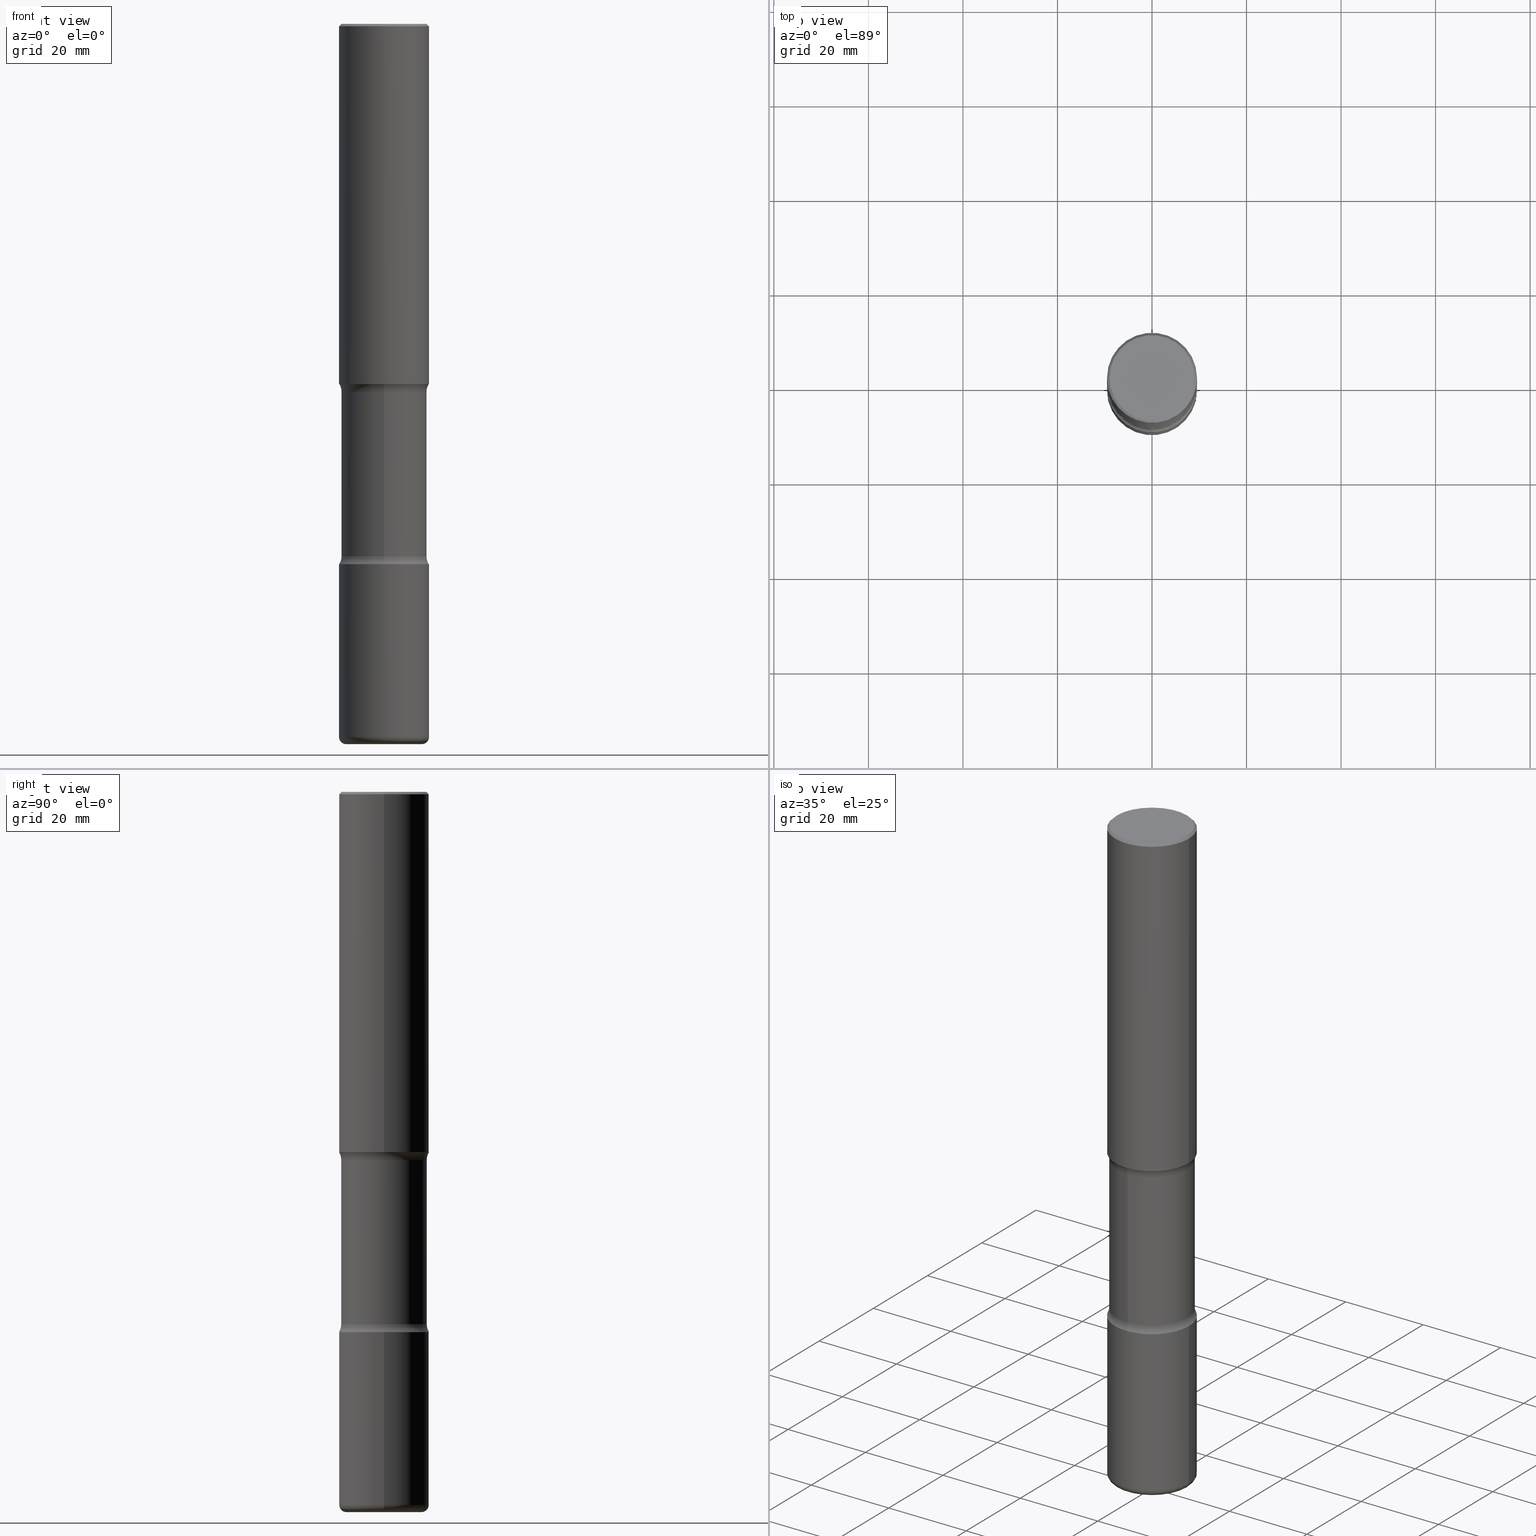
[diagram: canonical four-view strip — front | top / right | iso, engineering-drawing reading convention]
A machine part, canonical four-view strip (front | top / right | iso — engineering-drawing reading convention). The complete STEP part file that produces these views, byte-faithful:
ISO-10303-21;
HEADER;
FILE_DESCRIPTION (( 'STEP AP203' ),
    '1' );
FILE_NAME ('37935.STEP',
    '2024-03-02T01:33:41',
    ( '' ),
    ( '' ),
    'SwSTEP 2.0',
    'SolidWorks 2023',
    '' );
FILE_SCHEMA (( 'CONFIG_CONTROL_DESIGN' ));
ENDSEC;

DATA;
#1 = AXIS2_PLACEMENT_3D ( 'NONE', #47, #266, #215 ) ;
#2 = DIRECTION ( 'NONE',  ( 6.982962677686266711E-15, 1.000000000000000000, -2.913971193241876822E-15 ) ) ;
#3 = COORDINATED_UNIVERSAL_TIME_OFFSET ( 5, 0, .BEHIND. ) ;
#4 = ORIENTED_EDGE ( 'NONE', *, *, #426, .T. ) ;
#5 = DIRECTION ( 'NONE',  ( -2.445468806185136597E-29, 3.491481338843145583E-15, 1.000000000000000000 ) ) ;
#6 = DIRECTION ( 'NONE',  ( 6.982962677686265922E-15, 1.000000000000000000, -3.401578717594097873E-15 ) ) ;
#7 = VERTEX_POINT ( 'NONE', #360 ) ;
#8 = EDGE_LOOP ( 'NONE', ( #257, #548, #385, #527 ) ) ;
#9 = DIRECTION ( 'NONE',  ( -1.000000000000000000, 7.105427357600993970E-15, 0.000000000000000000 ) ) ;
#10 = ORIENTED_EDGE ( 'NONE', *, *, #255, .T. ) ;
#11 = CARTESIAN_POINT ( 'NONE',  ( 2.618611004132461246E-15, 0.3749999999999845124, -4.500000000000000888 ) ) ;
#12 = VECTOR ( 'NONE', #263, 39.37007874015748143 ) ;
#13 = EDGE_LOOP ( 'NONE', ( #340, #312 ) ) ;
#14 = EDGE_CURVE ( 'NONE', #7, #368, #201, .T. ) ;
#15 = CARTESIAN_POINT ( 'NONE',  ( 0.3750000000000001110, -2.642516375941188423E-15, -0.02000000000000006981 ) ) ;
#16 = FACE_OUTER_BOUND ( 'NONE', #218, .T. ) ;
#17 = AXIS2_PLACEMENT_3D ( 'NONE', #549, #120, #288 ) ;
#18 = AXIS2_PLACEMENT_3D ( 'NONE', #485, #140, #267 ) ;
#19 = EDGE_LOOP ( 'NONE', ( #305, #28, #467, #246 ) ) ;
#20 = DIRECTION ( 'NONE',  ( -2.445468806185136597E-29, 3.491481338843145583E-15, 1.000000000000000000 ) ) ;
#21 = DESIGN_CONTEXT ( 'detailed design', #382, 'design' ) ;
#22 = LOCAL_TIME ( 20, 33, 41.00000000000000000, #327 ) ;
#23 = CC_DESIGN_PERSON_AND_ORGANIZATION_ASSIGNMENT ( #374, #34, ( #420 ) ) ;
#24 = EDGE_CURVE ( 'NONE', #107, #53, #98, .T. ) ;
#25 = ORIENTED_EDGE ( 'NONE', *, *, #272, .T. ) ;
#26 = CARTESIAN_POINT ( 'NONE',  ( 7.336406418555407548E-29, -1.047444401652943320E-14, -2.999999999999999112 ) ) ;
#27 = CARTESIAN_POINT ( 'NONE',  ( 1.476698083443205790E-28, -2.081403410118529621E-14, -5.999999999999999112 ) ) ;
#28 = ORIENTED_EDGE ( 'NONE', *, *, #457, .T. ) ;
#29 = DIRECTION ( 'NONE',  ( 2.445468806185136597E-29, -3.491481338843145583E-15, -1.000000000000000000 ) ) ;
#30 = ORIENTED_EDGE ( 'NONE', *, *, #14, .T. ) ;
#31 = AXIS2_PLACEMENT_3D ( 'NONE', #27, #285, #369 ) ;
#32 = TOROIDAL_SURFACE ( 'NONE', #190, 0.3150000000000005573, 0.05999999999999939410 ) ;
#33 = DIRECTION ( 'NONE',  ( 2.508247471065963170E-29, -3.401578717594097873E-15, -1.000000000000000000 ) ) ;
#34 = PERSON_AND_ORGANIZATION_ROLE ( 'creator' ) ;
#35 = DIRECTION ( 'NONE',  ( -2.445468806185136597E-29, 3.491481338843145583E-15, 1.000000000000000000 ) ) ;
#36 = EDGE_CURVE ( 'NONE', #400, #141, #461, .T. ) ;
#37 = DIRECTION ( 'NONE',  ( -2.445468806185136597E-29, 3.491481338843145583E-15, 1.000000000000000000 ) ) ;
#38 = CARTESIAN_POINT ( 'NONE',  ( 0.3750000000000002220, -2.335801015686062967E-14, -5.939999999999999503 ) ) ;
#39 = DIRECTION ( 'NONE',  ( -2.438088387897960049E-29, 3.491481338843145188E-15, 1.000000000000000000 ) ) ;
#40 = CALENDAR_DATE ( 2024, 1, 3 ) ;
#41 = CARTESIAN_POINT ( 'NONE',  ( -0.3750000000000004441, 2.664535259100378852E-15, -1.844600658845591840E-29 ) ) ;
#42 = CIRCLE ( 'NONE', #137, 0.3150000000000005573 ) ;
#43 = EDGE_LOOP ( 'NONE', ( #316, #337 ) ) ;
#44 = AXIS2_PLACEMENT_3D ( 'NONE', #474, #33, #466 ) ;
#45 = ADVANCED_FACE ( 'NONE', ( #418 ), #203, .F. ) ;
#46 = ORIENTED_EDGE ( 'NONE', *, *, #174, .T. ) ;
#47 = CARTESIAN_POINT ( 'NONE',  ( 1.100460962783311244E-28, -1.571166602479415374E-14, -4.499999999999999112 ) ) ;
#48 = CARTESIAN_POINT ( 'NONE',  ( -0.3750000000000003886, -2.607601562552767029E-15, -2.999999999999999112 ) ) ;
#49 = FACE_OUTER_BOUND ( 'NONE', #13, .T. ) ;
#50 = CARTESIAN_POINT ( 'NONE',  ( 4.890937612370289799E-31, -6.982962677686315028E-17, -0.02000000000000006981 ) ) ;
#51 = CARTESIAN_POINT ( 'NONE',  ( 4.890937612370289799E-31, -6.982962677686315028E-17, -0.02000000000000006981 ) ) ;
#52 = CIRCLE ( 'NONE', #187, 0.3750000000000001110 ) ;
#53 = VERTEX_POINT ( 'NONE', #462 ) ;
#54 = EDGE_CURVE ( 'NONE', #53, #180, #67, .T. ) ;
#55 = PERSON_AND_ORGANIZATION_ROLE ( 'design_owner' ) ;
#56 = EDGE_CURVE ( 'NONE', #97, #559, #42, .T. ) ;
#57 = AXIS2_PLACEMENT_3D ( 'NONE', #244, #77, #73 ) ;
#58 = CC_DESIGN_APPROVAL ( #155, ( #129 ) ) ;
#59 = DIRECTION ( 'NONE',  ( -2.445468806185136597E-29, 3.491481338843145583E-15, 1.000000000000000000 ) ) ;
#60 = CARTESIAN_POINT ( 'NONE',  ( -1.043851414335219820E-46, 1.490343170380447200E-32, 4.268512490100411279E-18 ) ) ;
#61 = PRODUCT_RELATED_PRODUCT_CATEGORY ( 'detail', '', ( #206 ) ) ;
#62 = ADVANCED_FACE ( 'NONE', ( #253 ), #84, .F. ) ;
#63 = DIMENSIONAL_EXPONENTS ( 1.000000000000000000, 0.000000000000000000, 0.000000000000000000, 0.000000000000000000, 0.000000000000000000, 0.000000000000000000, 0.000000000000000000 ) ;
#64 = AXIS2_PLACEMENT_3D ( 'NONE', #447, #193, #309 ) ;
#65 = AXIS2_PLACEMENT_3D ( 'NONE', #50, #100, #451 ) ;
#66 = ORIENTED_EDGE ( 'NONE', *, *, #303, .T. ) ;
#67 = LINE ( 'NONE', #243, #486 ) ;
#68 = AXIS2_PLACEMENT_3D ( 'NONE', #529, #192, #185 ) ;
#69 = DIRECTION ( 'NONE',  ( 1.000000000000000000, -6.982962677686265922E-15, 4.876176775795935793E-29 ) ) ;
#70 = ORIENTED_EDGE ( 'NONE', *, *, #54, .F. ) ;
#71 = DIRECTION ( 'NONE',  ( -2.445468806185136877E-29, 3.491481338843145188E-15, 1.000000000000000000 ) ) ;
#72 = DATE_AND_TIME ( #173, #241 ) ;
#73 = DIRECTION ( 'NONE',  ( 6.860497997771532351E-15, 1.000000000000000000, 0.000000000000000000 ) ) ;
#74 = EDGE_CURVE ( 'NONE', #280, #118, #409, .T. ) ;
#75 = ADVANCED_FACE ( 'NONE', ( #516 ), #162, .F. ) ;
#76 = VECTOR ( 'NONE', #506, 39.37007874015748143 ) ;
#77 = DIRECTION ( 'NONE',  ( 1.000000000000000000, -6.860497997771530774E-15, 4.841899869197618814E-29 ) ) ;
#78 = CARTESIAN_POINT ( 'NONE',  ( -1.043851414335219820E-46, 1.490343170380447200E-32, 4.268512490100411279E-18 ) ) ;
#79 = PLANE ( 'NONE',  #410 ) ;
#80 = ORIENTED_EDGE ( 'NONE', *, *, #354, .T. ) ;
#81 = FACE_OUTER_BOUND ( 'NONE', #94, .T. ) ;
#82 = DIRECTION ( 'NONE',  ( 1.000000000000000000, -6.982962677686265922E-15, 4.876176775795935793E-29 ) ) ;
#83 = CYLINDRICAL_SURFACE ( 'NONE', #186, 0.3750000000000004441 ) ;
#84 = TOROIDAL_SURFACE ( 'NONE', #104, 0.4812500000000000666, 0.1249999999999998612 ) ;
#85 = AXIS2_PLACEMENT_3D ( 'NONE', #299, #399, #304 ) ;
#86 = DIRECTION ( 'NONE',  ( -6.982962677686268288E-15, -1.000000000000000000, 0.000000000000000000 ) ) ;
#87 = ORIENTED_EDGE ( 'NONE', *, *, #558, .F. ) ;
#88 = DIRECTION ( 'NONE',  ( 2.438088387897960049E-29, -3.491481338843145188E-15, -1.000000000000000000 ) ) ;
#89 = CARTESIAN_POINT ( 'NONE',  ( 7.242238421234168109E-29, -1.060929794840300496E-14, -2.999999999999999112 ) ) ;
#90 = ADVANCED_FACE ( 'NONE', ( #133 ), #386, .T. ) ;
#91 =( CONVERSION_BASED_UNIT ( 'INCH', #114 ) LENGTH_UNIT ( ) NAMED_UNIT ( #63 ) );
#92 = VERTEX_POINT ( 'NONE', #471 ) ;
#93 = CARTESIAN_POINT ( 'NONE',  ( 2.618611004132426142E-15, 0.3749999999999898415, -3.000000000000000444 ) ) ;
#94 = EDGE_LOOP ( 'NONE', ( #183, #198 ) ) ;
#95 = DIRECTION ( 'NONE',  ( -1.000000000000000000, 6.982962677686265922E-15, -4.876176775795935793E-29 ) ) ;
#96 = ADVANCED_FACE ( 'NONE', ( #524 ), #83, .T. ) ;
#97 = VERTEX_POINT ( 'NONE', #532 ) ;
#98 = CIRCLE ( 'NONE', #113, 0.3550000000000000377 ) ;
#99 = AXIS2_PLACEMENT_3D ( 'NONE', #256, #482, #479 ) ;
#100 = DIRECTION ( 'NONE',  ( 2.445468806185136597E-29, -3.491481338843145583E-15, -1.000000000000000000 ) ) ;
#101 = ORIENTED_EDGE ( 'NONE', *, *, #533, .T. ) ;
#102 = ORIENTED_EDGE ( 'NONE', *, *, #403, .T. ) ;
#103 = ORIENTED_EDGE ( 'NONE', *, *, #389, .F. ) ;
#104 = AXIS2_PLACEMENT_3D ( 'NONE', #396, #392, #484 ) ;
#105 = AXIS2_PLACEMENT_3D ( 'NONE', #517, #59, #333 ) ;
#106 = ORIENTED_EDGE ( 'NONE', *, *, #293, .F. ) ;
#107 = VERTEX_POINT ( 'NONE', #528 ) ;
#108 = EDGE_LOOP ( 'NONE', ( #436, #542, #10, #414 ) ) ;
#109 = DIRECTION ( 'NONE',  ( -6.982962677686265922E-15, -1.000000000000000000, 3.401578717594097873E-15 ) ) ;
#110 = MANIFOLD_SOLID_BREP ( 'Body-Move/Copy2[2]', #125 ) ;
#111 = CYLINDRICAL_SURFACE ( 'NONE', #31, 0.3562500000000000111 ) ;
#112 = MANIFOLD_SOLID_BREP ( 'Body-Move/Copy2[4]', #322 ) ;
#113 = AXIS2_PLACEMENT_3D ( 'NONE', #60, #421, #205 ) ;
#114 = LENGTH_MEASURE_WITH_UNIT ( LENGTH_MEASURE( 0.02539999999999999897 ), #555 );
#115 = AXIS2_PLACEMENT_3D ( 'NONE', #78, #489, #444 ) ;
#116 = ORGANIZATION ( 'UNSPECIFIED', 'UNSPECIFIED', '' ) ;
#117 = APPROVAL_DATE_TIME ( #459, #155 ) ;
#118 = VERTEX_POINT ( 'NONE', #38 ) ;
#119 = CARTESIAN_POINT ( 'NONE',  ( -0.3750000000000002220, 2.664535259100377275E-15, -1.844600658845590719E-29 ) ) ;
#120 = DIRECTION ( 'NONE',  ( 2.508247471065963170E-29, -3.401578717594097873E-15, -1.000000000000000000 ) ) ;
#121 = EDGE_LOOP ( 'NONE', ( #260, #359, #135, #103 ) ) ;
#122 = DIRECTION ( 'NONE',  ( 6.982962677686265922E-15, 1.000000000000000000, -3.401578717594097873E-15 ) ) ;
#123 = SHAPE_DEFINITION_REPRESENTATION ( #422, #178 ) ;
#124 = CYLINDRICAL_SURFACE ( 'NONE', #277, 0.3750000000000004441 ) ;
#125 = CLOSED_SHELL ( 'NONE', ( #361, #364, #231, #200, #468, #90 ) ) ;
#126 = FACE_OUTER_BOUND ( 'NONE', #157, .T. ) ;
#127 = DIRECTION ( 'NONE',  ( 2.508247471065963170E-29, -3.401578717594097873E-15, -1.000000000000000000 ) ) ;
#128 = EDGE_LOOP ( 'NONE', ( #431, #395, #227, #70 ) ) ;
#129 = PRODUCT_DEFINITION ( 'UNKNOWN', '', #420, #21 ) ;
#130 = DIRECTION ( 'NONE',  ( -2.445468806185136877E-29, 3.491481338843145188E-15, 1.000000000000000000 ) ) ;
#131 = DIRECTION ( 'NONE',  ( 1.000000000000000000, -6.982962677686261977E-15, 0.000000000000000000 ) ) ;
#132 = EDGE_LOOP ( 'NONE', ( #523, #46, #242, #165 ) ) ;
#133 = FACE_OUTER_BOUND ( 'NONE', #8, .T. ) ;
#134 = CARTESIAN_POINT ( 'NONE',  ( 0.3150000000000005573, -2.293903239619945935E-14, -5.939999999999999503 ) ) ;
#135 = ORIENTED_EDGE ( 'NONE', *, *, #270, .F. ) ;
#136 = DIRECTION ( 'NONE',  ( 1.000000000000000000, -6.982962677686265922E-15, 0.000000000000000000 ) ) ;
#137 = AXIS2_PLACEMENT_3D ( 'NONE', #289, #344, #213 ) ;
#138 = VECTOR ( 'NONE', #130, 39.37007874015748143 ) ;
#139 = SECURITY_CLASSIFICATION ( '', '', #164 ) ;
#140 = DIRECTION ( 'NONE',  ( 2.508247471065963170E-29, -3.401578717594097873E-15, -1.000000000000000000 ) ) ;
#141 = VERTEX_POINT ( 'NONE', #442 ) ;
#142 = CARTESIAN_POINT ( 'NONE',  ( -0.3150000000000005573, -1.850118953508396445E-14, -5.939999999999999503 ) ) ;
#143 = EDGE_CURVE ( 'NONE', #357, #546, #428, .T. ) ;
#144 = EDGE_LOOP ( 'NONE', ( #276, #25, #271, #500 ) ) ;
#145 = PERSON_AND_ORGANIZATION ( #152, #116 ) ;
#146 = AXIS2_PLACEMENT_3D ( 'NONE', #413, #331, #378 ) ;
#147 = APPROVAL_PERSON_ORGANIZATION ( #515, #363, #384 ) ;
#148 = APPROVAL_STATUS ( 'not_yet_approved' ) ;
#149 = EDGE_CURVE ( 'NONE', #53, #107, #551, .T. ) ;
#150 = EDGE_CURVE ( 'NONE', #393, #92, #323, .T. ) ;
#151 = ORIENTED_EDGE ( 'NONE', *, *, #426, .F. ) ;
#152 = PERSON ( 'UNSPECIFIED', 'UNSPECIFIED', 'UNSPECIFIED', ('UNSPECIFIED'), ('UNSPECIFIED'), ('UNSPECIFIED') ) ;
#153 = CIRCLE ( 'NONE', #99, 0.3562500000000000111 ) ;
#154 = DIRECTION ( 'NONE',  ( 2.508247471065963170E-29, -3.401578717594097873E-15, -1.000000000000000000 ) ) ;
#155 = APPROVAL ( #315, 'UNSPECIFIED' ) ;
#156 = ORIENTED_EDGE ( 'NONE', *, *, #264, .T. ) ;
#157 = EDGE_LOOP ( 'NONE', ( #531, #221 ) ) ;
#158 = DIRECTION ( 'NONE',  ( 1.000000000000000000, -6.982962677686266711E-15, 4.876176775795935793E-29 ) ) ;
#159 = ADVANCED_FACE ( 'NONE', ( #126 ), #307, .T. ) ;
#160 = ORIENTED_EDGE ( 'NONE', *, *, #54, .T. ) ;
#161 = FACE_OUTER_BOUND ( 'NONE', #108, .T. ) ;
#162 = TOROIDAL_SURFACE ( 'NONE', #208, 0.4812500000000000666, 0.1249999999999998612 ) ;
#163 = AXIS2_PLACEMENT_3D ( 'NONE', #172, #332, #477 ) ;
#164 = SECURITY_CLASSIFICATION_LEVEL ( 'unclassified' ) ;
#165 = ORIENTED_EDGE ( 'NONE', *, *, #255, .F. ) ;
#166 = EDGE_CURVE ( 'NONE', #92, #393, #473, .T. ) ;
#167 = DIRECTION ( 'NONE',  ( -1.000000000000000000, 6.982962677686265922E-15, 0.000000000000000000 ) ) ;
#168 = PERSON_AND_ORGANIZATION ( #152, #116 ) ;
#169 = DIRECTION ( 'NONE',  ( 1.000000000000000000, -6.982962677686263555E-15, 0.000000000000000000 ) ) ;
#170 = APPROVAL_DATE_TIME ( #72, #446 ) ;
#171 = CARTESIAN_POINT ( 'NONE',  ( -0.3750000000000002220, -1.807486389362790396E-14, -5.939999999999999503 ) ) ;
#172 = CARTESIAN_POINT ( 'NONE',  ( 3.360550788636589613E-15, 0.4812499999999890754, -3.065847835955331391 ) ) ;
#173 = CALENDAR_DATE ( 2024, 1, 3 ) ;
#174 = EDGE_CURVE ( 'NONE', #280, #393, #557, .T. ) ;
#175 = ORIENTED_EDGE ( 'NONE', *, *, #478, .F. ) ;
#176 = DIRECTION ( 'NONE',  ( -1.000000000000000000, 6.982962677686265922E-15, -4.876176775795935793E-29 ) ) ;
#177 = TOROIDAL_SURFACE ( 'NONE', #44, 0.4812499999999999556, 0.1249999999999999584 ) ;
#178 = ADVANCED_BREP_SHAPE_REPRESENTATION ( '37935', ( #300, #110, #112, #391 ), #536 ) ;
#179 = DIRECTION ( 'NONE',  ( 2.508247471065963170E-29, -3.401578717594097873E-15, -1.000000000000000000 ) ) ;
#180 = VERTEX_POINT ( 'NONE', #298 ) ;
#181 = DIRECTION ( 'NONE',  ( 2.438088387897960049E-29, -3.491481338843145188E-15, -1.000000000000000000 ) ) ;
#182 = DIRECTION ( 'NONE',  ( 2.508247471065963170E-29, -3.401578717594097873E-15, -1.000000000000000000 ) ) ;
#183 = ORIENTED_EDGE ( 'NONE', *, *, #166, .T. ) ;
#184 = DIRECTION ( 'NONE',  ( -0.7071067811865472397, 2.468850131082253905E-15, -0.7071067811865477948 ) ) ;
#185 = DIRECTION ( 'NONE',  ( 6.982962677686266711E-15, 1.000000000000000000, -2.913971193241876822E-15 ) ) ;
#186 = AXIS2_PLACEMENT_3D ( 'NONE', #262, #560, #518 ) ;
#187 = AXIS2_PLACEMENT_3D ( 'NONE', #538, #191, #259 ) ;
#188 = EDGE_CURVE ( 'NONE', #368, #507, #261, .T. ) ;
#189 = ADVANCED_FACE ( 'NONE', ( #81 ), #258, .F. ) ;
#190 = AXIS2_PLACEMENT_3D ( 'NONE', #352, #449, #230 ) ;
#191 = DIRECTION ( 'NONE',  ( -2.445468806185136597E-29, 3.491481338843145583E-15, 1.000000000000000000 ) ) ;
#192 = DIRECTION ( 'NONE',  ( 2.508247471065963170E-29, -3.401578717594097873E-15, -1.000000000000000000 ) ) ;
#193 = DIRECTION ( 'NONE',  ( 2.438088387897960049E-29, -3.491481338843145188E-15, -1.000000000000000000 ) ) ;
#194 = DATE_TIME_ROLE ( 'classification_date' ) ;
#195 = CIRCLE ( 'NONE', #85, 0.1249999999999998335 ) ;
#196 = AXIS2_PLACEMENT_3D ( 'NONE', #308, #179, #226 ) ;
#197 = CYLINDRICAL_SURFACE ( 'NONE', #273, 0.3750000000000002220 ) ;
#198 = ORIENTED_EDGE ( 'NONE', *, *, #150, .T. ) ;
#199 = VERTEX_POINT ( 'NONE', #408 ) ;
#200 = ADVANCED_FACE ( 'NONE', ( #348 ), #313, .F. ) ;
#201 = CIRCLE ( 'NONE', #334, 0.3562500000000000111 ) ;
#202 = AXIS2_PLACEMENT_3D ( 'NONE', #210, #223, #136 ) ;
#203 = PLANE ( 'NONE',  #283 ) ;
#204 = CARTESIAN_POINT ( 'NONE',  ( -2.572686749164215473E-15, -0.3750000000000159317, -4.499999999999998224 ) ) ;
#205 = DIRECTION ( 'NONE',  ( 1.000000000000000000, -6.982962677686266711E-15, 4.876231632511987623E-29 ) ) ;
#206 = PRODUCT ( '37935', '37935', '', ( #415 ) ) ;
#207 = CARTESIAN_POINT ( 'NONE',  ( 1.452608470873971031E-28, -2.073939915272828281E-14, -5.939999999999999503 ) ) ;
#208 = AXIS2_PLACEMENT_3D ( 'NONE', #341, #381, #122 ) ;
#209 = CC_DESIGN_APPROVAL ( #363, ( #420 ) ) ;
#210 = CARTESIAN_POINT ( 'NONE',  ( 1.100460962783311244E-28, -1.571166602479415374E-14, -4.499999999999999112 ) ) ;
#211 = FACE_OUTER_BOUND ( 'NONE', #351, .T. ) ;
#212 = VERTEX_POINT ( 'NONE', #355 ) ;
#213 = DIRECTION ( 'NONE',  ( 1.000000000000000000, -6.982962677686261977E-15, 0.000000000000000000 ) ) ;
#214 = DIRECTION ( 'NONE',  ( 6.982962677686265133E-15, 1.000000000000000000, -3.067338098149347905E-15 ) ) ;
#215 = DIRECTION ( 'NONE',  ( 6.982962677686265922E-15, 1.000000000000000000, -2.913971193241877611E-15 ) ) ;
#216 = DIRECTION ( 'NONE',  ( 2.508247471065962609E-29, -3.401578717594097873E-15, -1.000000000000000000 ) ) ;
#217 = AXIS2_PLACEMENT_3D ( 'NONE', #26, #239, #281 ) ;
#218 = EDGE_LOOP ( 'NONE', ( #443, #151, #480, #101 ) ) ;
#219 = AXIS2_PLACEMENT_3D ( 'NONE', #537, #345, #86 ) ;
#220 = CARTESIAN_POINT ( 'NONE',  ( 1.100460962783311244E-28, -1.571166602479415374E-14, -4.499999999999999112 ) ) ;
#221 = ORIENTED_EDGE ( 'NONE', *, *, #56, .F. ) ;
#222 = DIRECTION ( 'NONE',  ( -2.445468806185136597E-29, 3.491481338843145583E-15, 1.000000000000000000 ) ) ;
#223 = DIRECTION ( 'NONE',  ( -2.445468806185136597E-29, 3.491481338843145583E-15, 1.000000000000000000 ) ) ;
#224 = CARTESIAN_POINT ( 'NONE',  ( 1.467281283711081510E-28, -2.094888803305886640E-14, -5.999999999999998224 ) ) ;
#225 = ORIENTED_EDGE ( 'NONE', *, *, #74, .F. ) ;
#226 = DIRECTION ( 'NONE',  ( 6.982962677686265922E-15, 1.000000000000000000, -2.913971193241877611E-15 ) ) ;
#227 = ORIENTED_EDGE ( 'NONE', *, *, #448, .T. ) ;
#228 = VECTOR ( 'NONE', #71, 39.37007874015748143 ) ;
#229 = CC_DESIGN_APPROVAL ( #446, ( #139 ) ) ;
#230 = DIRECTION ( 'NONE',  ( 1.000000000000000000, -6.982962677686263555E-15, 4.883557194083111219E-29 ) ) ;
#231 = ADVANCED_FACE ( 'NONE', ( #540 ), #314, .T. ) ;
#232 = ADVANCED_FACE ( 'NONE', ( #16 ), #177, .F. ) ;
#233 = EDGE_LOOP ( 'NONE', ( #106, #30, #268, #513 ) ) ;
#234 = APPROVAL_ROLE ( '' ) ;
#235 = AXIS2_PLACEMENT_3D ( 'NONE', #224, #296, #131 ) ;
#236 = LOCAL_TIME ( 20, 33, 41.00000000000000000, #358 ) ;
#237 = FACE_OUTER_BOUND ( 'NONE', #319, .T. ) ;
#238 = CARTESIAN_POINT ( 'NONE',  ( 0.3750000000000002220, -2.618611004132351594E-15, 1.828566290923477043E-29 ) ) ;
#239 = DIRECTION ( 'NONE',  ( -2.445468806185136597E-29, 3.491481338843145583E-15, 1.000000000000000000 ) ) ;
#240 = CONICAL_SURFACE ( 'NONE', #362, 0.3750000000000001110, 0.7853981633974479459 ) ;
#241 = LOCAL_TIME ( 20, 33, 41.00000000000000000, #275 ) ;
#242 = ORIENTED_EDGE ( 'NONE', *, *, #166, .F. ) ;
#243 = CARTESIAN_POINT ( 'NONE',  ( -0.3750000000000001110, 2.548781377355487113E-15, -0.02000000000000006981 ) ) ;
#244 = CARTESIAN_POINT ( 'NONE',  ( -3.301614661427474544E-15, -0.4812500000000108358, -3.065847835955327838 ) ) ;
#245 = APPROVAL_STATUS ( 'not_yet_approved' ) ;
#246 = ORIENTED_EDGE ( 'NONE', *, *, #403, .F. ) ;
#247 = ORIENTED_EDGE ( 'NONE', *, *, #544, .F. ) ;
#248 = DIRECTION ( 'NONE',  ( -2.445468806185136597E-29, 3.491481338843145583E-15, 1.000000000000000000 ) ) ;
#249 = CIRCLE ( 'NONE', #219, 0.1249999999999998335 ) ;
#250 = PERSON_AND_ORGANIZATION_ROLE ( 'creator' ) ;
#251 = CYLINDRICAL_SURFACE ( 'NONE', #371, 0.3562500000000000111 ) ;
#252 = DATE_AND_TIME ( #294, #22 ) ;
#253 = FACE_OUTER_BOUND ( 'NONE', #302, .T. ) ;
#254 = CC_DESIGN_PERSON_AND_ORGANIZATION_ASSIGNMENT ( #168, #550, ( #420 ) ) ;
#255 = EDGE_CURVE ( 'NONE', #118, #92, #470, .T. ) ;
#256 = CARTESIAN_POINT ( 'NONE',  ( 7.407401089244291879E-29, -1.083328454578828421E-14, -3.065847835955329614 ) ) ;
#257 = ORIENTED_EDGE ( 'NONE', *, *, #354, .F. ) ;
#258 = PLANE ( 'NONE',  #390 ) ;
#259 = DIRECTION ( 'NONE',  ( 1.000000000000000000, -6.982962677686265922E-15, 0.000000000000000000 ) ) ;
#260 = ORIENTED_EDGE ( 'NONE', *, *, #452, .T. ) ;
#261 = CIRCLE ( 'NONE', #163, 0.1249999999999999584 ) ;
#262 = CARTESIAN_POINT ( 'NONE',  ( 0.000000000000000000, 0.000000000000000000, 0.000000000000000000 ) ) ;
#263 = DIRECTION ( 'NONE',  ( 0.7071067811865472397, -7.319954787623254468E-15, -0.7071067811865477948 ) ) ;
#264 = EDGE_CURVE ( 'NONE', #199, #328, #519, .T. ) ;
#265 = ORIENTED_EDGE ( 'NONE', *, *, #149, .T. ) ;
#266 = DIRECTION ( 'NONE',  ( 2.508247471065963170E-29, -3.401578717594097873E-15, -1.000000000000000000 ) ) ;
#267 = DIRECTION ( 'NONE',  ( 6.982962677686265922E-15, 1.000000000000000000, -3.401578717594097873E-15 ) ) ;
#268 = ORIENTED_EDGE ( 'NONE', *, *, #478, .T. ) ;
#269 = FACE_OUTER_BOUND ( 'NONE', #121, .T. ) ;
#270 = EDGE_CURVE ( 'NONE', #118, #280, #356, .T. ) ;
#271 = ORIENTED_EDGE ( 'NONE', *, *, #498, .T. ) ;
#272 = EDGE_CURVE ( 'NONE', #7, #212, #306, .T. ) ;
#273 = AXIS2_PLACEMENT_3D ( 'NONE', #383, #552, #158 ) ;
#274 = LOCAL_TIME ( 20, 33, 41.00000000000000000, #379 ) ;
#275 = COORDINATED_UNIVERSAL_TIME_OFFSET ( 5, 0, .BEHIND. ) ;
#276 = ORIENTED_EDGE ( 'NONE', *, *, #14, .F. ) ;
#277 = AXIS2_PLACEMENT_3D ( 'NONE', #547, #37, #69 ) ;
#278 = ADVANCED_FACE ( 'NONE', ( #211 ), #439, .T. ) ;
#279 = EDGE_LOOP ( 'NONE', ( #483, #297, #160, #441 ) ) ;
#280 = VERTEX_POINT ( 'NONE', #171 ) ;
#281 = DIRECTION ( 'NONE',  ( 1.000000000000000000, -6.982962677686265922E-15, 0.000000000000000000 ) ) ;
#282 = CC_DESIGN_PERSON_AND_ORGANIZATION_ASSIGNMENT ( #370, #250, ( #129 ) ) ;
#283 = AXIS2_PLACEMENT_3D ( 'NONE', #365, #320, #109 ) ;
#284 = CIRCLE ( 'NONE', #235, 0.3150000000000005573 ) ;
#285 = DIRECTION ( 'NONE',  ( 2.508247471065963170E-29, -3.401578717594097873E-15, -1.000000000000000000 ) ) ;
#286 = CIRCLE ( 'NONE', #196, 0.3750000000000003886 ) ;
#287 = DIRECTION ( 'NONE',  ( 1.000000000000000000, -6.982962677686263555E-15, 0.000000000000000000 ) ) ;
#288 = DIRECTION ( 'NONE',  ( 6.982962677686265133E-15, 1.000000000000000000, -3.067338098149347905E-15 ) ) ;
#289 = CARTESIAN_POINT ( 'NONE',  ( 1.467281283711081510E-28, -2.094888803305886640E-14, -5.999999999999998224 ) ) ;
#290 = CARTESIAN_POINT ( 'NONE',  ( 4.890937612370289799E-31, -6.982962677686315028E-17, -0.02000000000000006981 ) ) ;
#291 = AXIS2_PLACEMENT_3D ( 'NONE', #492, #216, #6 ) ;
#292 = ADVANCED_FACE ( 'NONE', ( #324 ), #251, .T. ) ;
#293 = EDGE_CURVE ( 'NONE', #7, #328, #432, .T. ) ;
#294 = CALENDAR_DATE ( 2024, 1, 3 ) ;
#295 = DIRECTION ( 'NONE',  ( 1.000000000000000000, -6.982962677686265922E-15, 0.000000000000000000 ) ) ;
#296 = DIRECTION ( 'NONE',  ( -2.445468806185136597E-29, 3.491481338843145583E-15, 1.000000000000000000 ) ) ;
#297 = ORIENTED_EDGE ( 'NONE', *, *, #149, .F. ) ;
#298 = CARTESIAN_POINT ( 'NONE',  ( -0.3750000000000001110, 2.548781377355487113E-15, -0.02000000000000006981 ) ) ;
#299 = CARTESIAN_POINT ( 'NONE',  ( -3.301614661427441806E-15, -0.4812500000000156097, -4.434152164044668609 ) ) ;
#300 = MANIFOLD_SOLID_BREP ( 'Body-Move/Copy2[1]', #472 ) ;
#301 = APPROVAL_DATE_TIME ( #526, #363 ) ;
#302 = EDGE_LOOP ( 'NONE', ( #494, #247, #102, #156 ) ) ;
#303 = EDGE_CURVE ( 'NONE', #141, #400, #455, .T. ) ;
#304 = DIRECTION ( 'NONE',  ( 6.860497997771531562E-15, 1.000000000000000000, 0.000000000000000000 ) ) ;
#305 = ORIENTED_EDGE ( 'NONE', *, *, #143, .F. ) ;
#306 = CIRCLE ( 'NONE', #57, 0.1249999999999999584 ) ;
#307 = PLANE ( 'NONE',  #388 ) ;
#308 = CARTESIAN_POINT ( 'NONE',  ( 1.100460962783311244E-28, -1.571166602479415374E-14, -4.499999999999999112 ) ) ;
#309 = DIRECTION ( 'NONE',  ( -1.000000000000000000, 6.982962677686265922E-15, -4.876176775795935793E-29 ) ) ;
#310 = DIRECTION ( 'NONE',  ( 1.000000000000000000, -6.982962677686265922E-15, 0.000000000000000000 ) ) ;
#311 = DIRECTION ( 'NONE',  ( 0.000000000000000000, 0.000000000000000000, 1.000000000000000000 ) ) ;
#312 = ORIENTED_EDGE ( 'NONE', *, *, #36, .F. ) ;
#313 = PLANE ( 'NONE',  #64 ) ;
#314 = CONICAL_SURFACE ( 'NONE', #65, 0.3750000000000001110, 0.7853981633974479459 ) ;
#315 = APPROVAL_STATUS ( 'not_yet_approved' ) ;
#316 = ORIENTED_EDGE ( 'NONE', *, *, #533, .F. ) ;
#317 = VECTOR ( 'NONE', #182, 39.37007874015748143 ) ;
#318 = DIRECTION ( 'NONE',  ( 6.982962677686265133E-15, 1.000000000000000000, -3.067338098149347905E-15 ) ) ;
#319 = EDGE_LOOP ( 'NONE', ( #66, #80, #411, #87 ) ) ;
#320 = DIRECTION ( 'NONE',  ( -2.508247471065962609E-29, 3.401578717594097873E-15, 1.000000000000000000 ) ) ;
#321 = FACE_OUTER_BOUND ( 'NONE', #233, .T. ) ;
#322 = CLOSED_SHELL ( 'NONE', ( #292, #75, #501, #232, #453, #45, #62, #376 ) ) ;
#323 = CIRCLE ( 'NONE', #202, 0.3750000000000003886 ) ;
#324 = FACE_OUTER_BOUND ( 'NONE', #343, .T. ) ;
#325 = PERSON_AND_ORGANIZATION_ROLE ( 'classification_officer' ) ;
#326 = CARTESIAN_POINT ( 'NONE',  ( 0.3750000000000001110, -2.642516375941188423E-15, -0.02000000000000006981 ) ) ;
#327 = COORDINATED_UNIVERSAL_TIME_OFFSET ( 5, 0, .BEHIND. ) ;
#328 = VERTEX_POINT ( 'NONE', #520 ) ;
#329 = CARTESIAN_POINT ( 'NONE',  ( 1.452608470873971031E-28, -2.073939915272828281E-14, -5.939999999999999503 ) ) ;
#330 = CC_DESIGN_DATE_AND_TIME_ASSIGNMENT ( #252, #194, ( #139 ) ) ;
#331 = DIRECTION ( 'NONE',  ( 2.508247471065963170E-29, -3.401578717594097873E-15, -1.000000000000000000 ) ) ;
#332 = DIRECTION ( 'NONE',  ( -1.000000000000000000, 6.982962677686265922E-15, -4.883557194083112901E-29 ) ) ;
#333 = DIRECTION ( 'NONE',  ( 1.000000000000000000, -6.982962677686265922E-15, 0.000000000000000000 ) ) ;
#334 = AXIS2_PLACEMENT_3D ( 'NONE', #423, #154, #318 ) ;
#335 = AXIS2_PLACEMENT_3D ( 'NONE', #142, #342, #9 ) ;
#336 = CC_DESIGN_SECURITY_CLASSIFICATION ( #139, ( #420 ) ) ;
#337 = ORIENTED_EDGE ( 'NONE', *, *, #498, .F. ) ;
#338 = CARTESIAN_POINT ( 'NONE',  ( 0.000000000000000000, 0.000000000000000000, 0.000000000000000000 ) ) ;
#339 = LINE ( 'NONE', #15, #12 ) ;
#340 = ORIENTED_EDGE ( 'NONE', *, *, #303, .F. ) ;
#341 = CARTESIAN_POINT ( 'NONE',  ( 1.084358079904955852E-28, -1.548175953435291656E-14, -4.434152164044670386 ) ) ;
#342 = DIRECTION ( 'NONE',  ( 7.105427357601001859E-15, 1.000000000000000000, -3.491481338843145583E-15 ) ) ;
#343 = EDGE_LOOP ( 'NONE', ( #4, #380, #427, #175 ) ) ;
#344 = DIRECTION ( 'NONE',  ( -2.445468806185136597E-29, 3.491481338843145583E-15, 1.000000000000000000 ) ) ;
#345 = DIRECTION ( 'NONE',  ( -1.000000000000000000, 6.982962677686265922E-15, -4.883557194083112901E-29 ) ) ;
#346 = APPLICATION_PROTOCOL_DEFINITION ( 'international standard', 'config_control_design', 1994, #417 ) ;
#347 = AXIS2_PLACEMENT_3D ( 'NONE', #338, #35, #481 ) ;
#348 = FACE_OUTER_BOUND ( 'NONE', #460, .T. ) ;
#349 = LINE ( 'NONE', #238, #521 ) ;
#350 =( NAMED_UNIT ( * ) SI_UNIT ( $, .STERADIAN. ) SOLID_ANGLE_UNIT ( ) );
#351 = EDGE_LOOP ( 'NONE', ( #505, #458, #491, #225 ) ) ;
#352 = CARTESIAN_POINT ( 'NONE',  ( 1.452608470873971031E-28, -2.073939915272828281E-14, -5.939999999999999503 ) ) ;
#353 = ADVANCED_FACE ( 'NONE', ( #161 ), #124, .T. ) ;
#354 = EDGE_CURVE ( 'NONE', #400, #180, #469, .T. ) ;
#355 = CARTESIAN_POINT ( 'NONE',  ( -2.572686749164255311E-15, -0.3750000000000111577, -2.999999999999998224 ) ) ;
#356 = CIRCLE ( 'NONE', #496, 0.3750000000000004996 ) ;
#357 = VERTEX_POINT ( 'NONE', #204 ) ;
#358 = COORDINATED_UNIVERSAL_TIME_OFFSET ( 5, 0, .BEHIND. ) ;
#359 = ORIENTED_EDGE ( 'NONE', *, *, #425, .T. ) ;
#360 = CARTESIAN_POINT ( 'NONE',  ( -2.508369580435144205E-15, -0.3562500000000108358, -3.065847835955328282 ) ) ;
#361 = ADVANCED_FACE ( 'NONE', ( #237 ), #197, .T. ) ;
#362 = AXIS2_PLACEMENT_3D ( 'NONE', #290, #29, #167 ) ;
#363 = APPROVAL ( #245, 'UNSPECIFIED' ) ;
#364 = ADVANCED_FACE ( 'NONE', ( #366 ), #240, .T. ) ;
#365 = CARTESIAN_POINT ( 'NONE',  ( 1.100460962783311244E-28, -1.571166602479415374E-14, -4.499999999999999112 ) ) ;
#366 = FACE_OUTER_BOUND ( 'NONE', #128, .T. ) ;
#367 = VERTEX_POINT ( 'NONE', #326 ) ;
#368 = VERTEX_POINT ( 'NONE', #514 ) ;
#369 = DIRECTION ( 'NONE',  ( 6.982962677686265133E-15, 1.000000000000000000, -3.067338098149347905E-15 ) ) ;
#370 = PERSON_AND_ORGANIZATION ( #152, #116 ) ;
#371 = AXIS2_PLACEMENT_3D ( 'NONE', #454, #430, #214 ) ;
#372 = CARTESIAN_POINT ( 'NONE',  ( 1.452608470873971031E-28, -2.073939915272828281E-14, -5.939999999999999503 ) ) ;
#373 = TOROIDAL_SURFACE ( 'NONE', #18, 0.4812499999999999556, 0.1249999999999999584 ) ;
#374 = PERSON_AND_ORGANIZATION ( #152, #116 ) ;
#375 = CARTESIAN_POINT ( 'NONE',  ( 2.920720718444006052E-28, -1.348080813311779196E-16, -5.999999999999999112 ) ) ;
#376 = ADVANCED_FACE ( 'NONE', ( #321 ), #111, .T. ) ;
#377 = EDGE_CURVE ( 'NONE', #328, #199, #545, .T. ) ;
#378 = DIRECTION ( 'NONE',  ( 6.982962677686265133E-15, 1.000000000000000000, -3.067338098149347905E-15 ) ) ;
#379 = COORDINATED_UNIVERSAL_TIME_OFFSET ( 5, 0, .BEHIND. ) ;
#380 = ORIENTED_EDGE ( 'NONE', *, *, #293, .T. ) ;
#381 = DIRECTION ( 'NONE',  ( 2.508247471065963170E-29, -3.401578717594097873E-15, -1.000000000000000000 ) ) ;
#382 = APPLICATION_CONTEXT ( 'configuration controlled 3d designs of mechanical parts and assemblies' ) ;
#383 = CARTESIAN_POINT ( 'NONE',  ( 0.000000000000000000, 0.000000000000000000, 0.000000000000000000 ) ) ;
#384 = APPROVAL_ROLE ( '' ) ;
#385 = ORIENTED_EDGE ( 'NONE', *, *, #558, .T. ) ;
#386 = CYLINDRICAL_SURFACE ( 'NONE', #347, 0.3750000000000002220 ) ;
#387 = LINE ( 'NONE', #397, #317 ) ;
#388 = AXIS2_PLACEMENT_3D ( 'NONE', #375, #88, #176 ) ;
#389 = EDGE_CURVE ( 'NONE', #559, #118, #463, .T. ) ;
#390 = AXIS2_PLACEMENT_3D ( 'NONE', #220, #181, #95 ) ;
#391 = AXIS2_PLACEMENT_3D ( 'NONE', #539, #311, #508 ) ;
#392 = DIRECTION ( 'NONE',  ( 2.508247471065963170E-29, -3.401578717594097873E-15, -1.000000000000000000 ) ) ;
#393 = VERTEX_POINT ( 'NONE', #534 ) ;
#394 = DIRECTION ( 'NONE',  ( -6.982962677686266711E-15, -1.000000000000000000, 3.491481338843145583E-15 ) ) ;
#395 = ORIENTED_EDGE ( 'NONE', *, *, #476, .T. ) ;
#396 = CARTESIAN_POINT ( 'NONE',  ( 1.084358079904955852E-28, -1.548175953435291656E-14, -4.434152164044670386 ) ) ;
#397 = CARTESIAN_POINT ( 'NONE',  ( 2.487680453925879638E-15, 0.3562499999999791389, -6.000000000000000888 ) ) ;
#398 = EDGE_LOOP ( 'NONE', ( #488, #503 ) ) ;
#399 = DIRECTION ( 'NONE',  ( 1.000000000000000000, -6.860497997771530774E-15, 4.841899869197618814E-29 ) ) ;
#400 = VERTEX_POINT ( 'NONE', #48 ) ;
#401 = CIRCLE ( 'NONE', #419, 0.3750000000000001110 ) ;
#402 = EDGE_CURVE ( 'NONE', #180, #367, #52, .T. ) ;
#403 = EDGE_CURVE ( 'NONE', #546, #199, #249, .T. ) ;
#404 = CARTESIAN_POINT ( 'NONE',  ( 7.336406418555407548E-29, -1.047444401652943320E-14, -2.999999999999999112 ) ) ;
#405 = APPROVAL_ROLE ( '' ) ;
#406 = APPLICATION_PROTOCOL_DEFINITION ( 'international standard', 'config_control_design', 1994, #382 ) ;
#407 = CC_DESIGN_PERSON_AND_ORGANIZATION_ASSIGNMENT ( #499, #55, ( #206 ) ) ;
#408 = CARTESIAN_POINT ( 'NONE',  ( 2.487680453925840195E-15, 0.3562499999999844680, -4.434152164044670386 ) ) ;
#409 = CIRCLE ( 'NONE', #438, 0.3750000000000004996 ) ;
#410 = AXIS2_PLACEMENT_3D ( 'NONE', #404, #39, #82 ) ;
#411 = ORIENTED_EDGE ( 'NONE', *, *, #448, .F. ) ;
#412 = CALENDAR_DATE ( 2024, 1, 3 ) ;
#413 = CARTESIAN_POINT ( 'NONE',  ( 1.083944695982298980E-28, -1.548767942740887449E-14, -4.434152164044669497 ) ) ;
#414 = ORIENTED_EDGE ( 'NONE', *, *, #150, .F. ) ;
#415 = MECHANICAL_CONTEXT ( 'NONE', #417, 'mechanical' ) ;
#416 = ORIENTED_EDGE ( 'NONE', *, *, #24, .T. ) ;
#417 = APPLICATION_CONTEXT ( 'configuration controlled 3d designs of mechanical parts and assemblies' ) ;
#418 = FACE_OUTER_BOUND ( 'NONE', #398, .T. ) ;
#419 = AXIS2_PLACEMENT_3D ( 'NONE', #51, #222, #310 ) ;
#420 = PRODUCT_DEFINITION_FORMATION_WITH_SPECIFIED_SOURCE ( 'ANY', '', #206, .NOT_KNOWN. ) ;
#421 = DIRECTION ( 'NONE',  ( -2.445468806185136597E-29, 3.491481338843145583E-15, 1.000000000000000000 ) ) ;
#422 = PRODUCT_DEFINITION_SHAPE ( 'NONE', 'NONE',  #129 ) ;
#423 = CARTESIAN_POINT ( 'NONE',  ( 7.407401089244291879E-29, -1.083328454578828421E-14, -3.065847835955329614 ) ) ;
#424 = DIRECTION ( 'NONE',  ( 1.000000000000000000, -6.982962677686263555E-15, 4.883557194083111219E-29 ) ) ;
#425 = EDGE_CURVE ( 'NONE', #97, #280, #541, .T. ) ;
#426 = EDGE_CURVE ( 'NONE', #368, #7, #153, .T. ) ;
#427 = ORIENTED_EDGE ( 'NONE', *, *, #264, .F. ) ;
#428 = CIRCLE ( 'NONE', #1, 0.3750000000000003886 ) ;
#429 = AXIS2_PLACEMENT_3D ( 'NONE', #134, #394, #525 ) ;
#430 = DIRECTION ( 'NONE',  ( 2.508247471065963170E-29, -3.401578717594097873E-15, -1.000000000000000000 ) ) ;
#431 = ORIENTED_EDGE ( 'NONE', *, *, #24, .F. ) ;
#432 = LINE ( 'NONE', #556, #502 ) ;
#433 = PLANE ( 'NONE',  #291 ) ;
#434 = DATE_TIME_ROLE ( 'creation_date' ) ;
#435 = DIRECTION ( 'NONE',  ( -2.445468806185136597E-29, 3.491481338843145583E-15, 1.000000000000000000 ) ) ;
#436 = ORIENTED_EDGE ( 'NONE', *, *, #174, .F. ) ;
#437 = FACE_OUTER_BOUND ( 'NONE', #144, .T. ) ;
#438 = AXIS2_PLACEMENT_3D ( 'NONE', #329, #5, #169 ) ;
#439 = TOROIDAL_SURFACE ( 'NONE', #535, 0.3150000000000005573, 0.05999999999999939410 ) ;
#440 = LOCAL_TIME ( 20, 33, 41.00000000000000000, #3 ) ;
#441 = ORIENTED_EDGE ( 'NONE', *, *, #402, .T. ) ;
#442 = CARTESIAN_POINT ( 'NONE',  ( 0.3750000000000003886, -1.309305502066178637E-14, -2.999999999999999112 ) ) ;
#443 = ORIENTED_EDGE ( 'NONE', *, *, #272, .F. ) ;
#444 = DIRECTION ( 'NONE',  ( 1.000000000000000000, -6.982962677686266711E-15, 4.876231632511987623E-29 ) ) ;
#445 = FACE_OUTER_BOUND ( 'NONE', #43, .T. ) ;
#446 = APPROVAL ( #148, 'UNSPECIFIED' ) ;
#447 = CARTESIAN_POINT ( 'NONE',  ( 2.478951750578624998E-15, 0.3550000000000000377, -1.237341619044266624E-15 ) ) ;
#448 = EDGE_CURVE ( 'NONE', #367, #180, #401, .T. ) ;
#449 = DIRECTION ( 'NONE',  ( -2.445468806185136597E-29, 3.491481338843145583E-15, 1.000000000000000000 ) ) ;
#450 = CARTESIAN_POINT ( 'NONE',  ( 0.3150000000000005573, -2.314852127653004293E-14, -5.999999999999998224 ) ) ;
#451 = DIRECTION ( 'NONE',  ( -1.000000000000000000, 6.982962677686265922E-15, 0.000000000000000000 ) ) ;
#452 = EDGE_CURVE ( 'NONE', #559, #97, #284, .T. ) ;
#453 = ADVANCED_FACE ( 'NONE', ( #445 ), #433, .F. ) ;
#454 = CARTESIAN_POINT ( 'NONE',  ( 1.476698083443205790E-28, -2.081403410118529621E-14, -5.999999999999999112 ) ) ;
#455 = CIRCLE ( 'NONE', #105, 0.3750000000000003886 ) ;
#456 = UNCERTAINTY_MEASURE_WITH_UNIT (LENGTH_MEASURE( 1.000000000000000082E-05 ), #91, 'distance_accuracy_value', 'NONE');
#457 = EDGE_CURVE ( 'NONE', #357, #328, #195, .T. ) ;
#458 = ORIENTED_EDGE ( 'NONE', *, *, #56, .T. ) ;
#459 = DATE_AND_TIME ( #412, #236 ) ;
#460 = EDGE_LOOP ( 'NONE', ( #265, #416 ) ) ;
#461 = CIRCLE ( 'NONE', #217, 0.3750000000000003886 ) ;
#462 = CARTESIAN_POINT ( 'NONE',  ( -0.3550000000000000377, 2.513866563967055858E-15, 4.268512490082953109E-18 ) ) ;
#463 = CIRCLE ( 'NONE', #429, 0.05999999999999942879 ) ;
#464 = CIRCLE ( 'NONE', #497, 0.3750000000000004996 ) ;
#465 = APPROVAL_PERSON_ORGANIZATION ( #145, #155, #234 ) ;
#466 = DIRECTION ( 'NONE',  ( 6.982962677686265922E-15, 1.000000000000000000, -3.401578717594097873E-15 ) ) ;
#467 = ORIENTED_EDGE ( 'NONE', *, *, #377, .T. ) ;
#468 = ADVANCED_FACE ( 'NONE', ( #49 ), #79, .F. ) ;
#469 = LINE ( 'NONE', #119, #228 ) ;
#470 = LINE ( 'NONE', #511, #76 ) ;
#471 = CARTESIAN_POINT ( 'NONE',  ( 0.3750000000000003886, -1.833027702892650691E-14, -4.499999999999999112 ) ) ;
#472 = CLOSED_SHELL ( 'NONE', ( #96, #510, #159, #278, #353, #189 ) ) ;
#473 = CIRCLE ( 'NONE', #509, 0.3750000000000003886 ) ;
#474 = CARTESIAN_POINT ( 'NONE',  ( 7.402053284434616373E-29, -1.084094290665388719E-14, -3.065847835955329614 ) ) ;
#475 = APPROVAL_PERSON_ORGANIZATION ( #530, #446, #405 ) ;
#476 = EDGE_CURVE ( 'NONE', #107, #367, #339, .T. ) ;
#477 = DIRECTION ( 'NONE',  ( -6.982962677686265133E-15, -1.000000000000000000, 0.000000000000000000 ) ) ;
#478 = EDGE_CURVE ( 'NONE', #368, #199, #387, .T. ) ;
#479 = DIRECTION ( 'NONE',  ( 6.982962677686265133E-15, 1.000000000000000000, -3.067338098149347905E-15 ) ) ;
#480 = ORIENTED_EDGE ( 'NONE', *, *, #188, .T. ) ;
#481 = DIRECTION ( 'NONE',  ( 1.000000000000000000, -6.982962677686266711E-15, 4.876176775795935793E-29 ) ) ;
#482 = DIRECTION ( 'NONE',  ( 2.508247471065963170E-29, -3.401578717594097873E-15, -1.000000000000000000 ) ) ;
#483 = ORIENTED_EDGE ( 'NONE', *, *, #476, .F. ) ;
#484 = DIRECTION ( 'NONE',  ( 6.982962677686265922E-15, 1.000000000000000000, -3.401578717594097873E-15 ) ) ;
#485 = CARTESIAN_POINT ( 'NONE',  ( 7.402053284434616373E-29, -1.084094290665388719E-14, -3.065847835955329614 ) ) ;
#486 = VECTOR ( 'NONE', #184, 39.37007874015748143 ) ;
#487 = CIRCLE ( 'NONE', #68, 0.3750000000000004996 ) ;
#488 = ORIENTED_EDGE ( 'NONE', *, *, #544, .T. ) ;
#489 = DIRECTION ( 'NONE',  ( -2.445468806185136597E-29, 3.491481338843145583E-15, 1.000000000000000000 ) ) ;
#490 = DIRECTION ( 'NONE',  ( 2.508247471065963170E-29, -3.401578717594097873E-15, -1.000000000000000000 ) ) ;
#491 = ORIENTED_EDGE ( 'NONE', *, *, #389, .T. ) ;
#492 = CARTESIAN_POINT ( 'NONE',  ( 7.336406418555407548E-29, -1.047444401652943320E-14, -2.999999999999999112 ) ) ;
#493 =( NAMED_UNIT ( * ) PLANE_ANGLE_UNIT ( ) SI_UNIT ( $, .RADIAN. ) );
#494 = ORIENTED_EDGE ( 'NONE', *, *, #457, .F. ) ;
#495 = DIRECTION ( 'NONE',  ( -2.445468806185136877E-29, 3.491481338843145188E-15, 1.000000000000000000 ) ) ;
#496 = AXIS2_PLACEMENT_3D ( 'NONE', #207, #20, #287 ) ;
#497 = AXIS2_PLACEMENT_3D ( 'NONE', #89, #490, #2 ) ;
#498 = EDGE_CURVE ( 'NONE', #212, #507, #487, .T. ) ;
#499 = PERSON_AND_ORGANIZATION ( #152, #116 ) ;
#500 = ORIENTED_EDGE ( 'NONE', *, *, #188, .F. ) ;
#501 = ADVANCED_FACE ( 'NONE', ( #437 ), #373, .F. ) ;
#502 = VECTOR ( 'NONE', #127, 39.37007874015748143 ) ;
#503 = ORIENTED_EDGE ( 'NONE', *, *, #143, .T. ) ;
#504 = CC_DESIGN_PERSON_AND_ORGANIZATION_ASSIGNMENT ( #553, #325, ( #139 ) ) ;
#505 = ORIENTED_EDGE ( 'NONE', *, *, #425, .F. ) ;
#506 = DIRECTION ( 'NONE',  ( -2.445468806185136877E-29, 3.491481338843145188E-15, 1.000000000000000000 ) ) ;
#507 = VERTEX_POINT ( 'NONE', #93 ) ;
#508 = DIRECTION ( 'NONE',  ( 1.000000000000000000, 0.000000000000000000, 0.000000000000000000 ) ) ;
#509 = AXIS2_PLACEMENT_3D ( 'NONE', #554, #435, #295 ) ;
#510 = ADVANCED_FACE ( 'NONE', ( #269 ), #32, .T. ) ;
#511 = CARTESIAN_POINT ( 'NONE',  ( 0.3750000000000004441, -2.618611004132352777E-15, 1.828566290923478164E-29 ) ) ;
#512 = DATE_AND_TIME ( #522, #274 ) ;
#513 = ORIENTED_EDGE ( 'NONE', *, *, #377, .F. ) ;
#514 = CARTESIAN_POINT ( 'NONE',  ( 2.487680453925806274E-15, 0.3562499999999891309, -3.065847835955330503 ) ) ;
#515 = PERSON_AND_ORGANIZATION ( #152, #116 ) ;
#516 = FACE_OUTER_BOUND ( 'NONE', #19, .T. ) ;
#517 = CARTESIAN_POINT ( 'NONE',  ( 7.336406418555407548E-29, -1.047444401652943320E-14, -2.999999999999999112 ) ) ;
#518 = DIRECTION ( 'NONE',  ( 1.000000000000000000, -6.982962677686265922E-15, 4.876176775795935793E-29 ) ) ;
#519 = CIRCLE ( 'NONE', #146, 0.3562500000000000111 ) ;
#520 = CARTESIAN_POINT ( 'NONE',  ( -2.508369580435107128E-15, -0.3562500000000154987, -4.434152164044668609 ) ) ;
#521 = VECTOR ( 'NONE', #495, 39.37007874015748143 ) ;
#522 = CALENDAR_DATE ( 2024, 1, 3 ) ;
#523 = ORIENTED_EDGE ( 'NONE', *, *, #270, .T. ) ;
#524 = FACE_OUTER_BOUND ( 'NONE', #132, .T. ) ;
#525 = DIRECTION ( 'NONE',  ( 1.000000000000000000, -6.982962677686269866E-15, 0.000000000000000000 ) ) ;
#526 = DATE_AND_TIME ( #40, #440 ) ;
#527 = ORIENTED_EDGE ( 'NONE', *, *, #402, .F. ) ;
#528 = CARTESIAN_POINT ( 'NONE',  ( 0.3550000000000000377, -2.538996582575041048E-15, 4.268512490117958041E-18 ) ) ;
#529 = CARTESIAN_POINT ( 'NONE',  ( 7.242238421234168109E-29, -1.060929794840300496E-14, -2.999999999999999112 ) ) ;
#530 = PERSON_AND_ORGANIZATION ( #152, #116 ) ;
#531 = ORIENTED_EDGE ( 'NONE', *, *, #452, .F. ) ;
#532 = CARTESIAN_POINT ( 'NONE',  ( -0.3150000000000005573, -1.839277115452122915E-14, -5.999999999999998224 ) ) ;
#533 = EDGE_CURVE ( 'NONE', #507, #212, #464, .T. ) ;
#534 = CARTESIAN_POINT ( 'NONE',  ( -0.3750000000000003886, -1.556099732966084100E-14, -4.499999999999999112 ) ) ;
#535 = AXIS2_PLACEMENT_3D ( 'NONE', #372, #248, #424 ) ;
#536 =( GEOMETRIC_REPRESENTATION_CONTEXT ( 3 ) GLOBAL_UNCERTAINTY_ASSIGNED_CONTEXT ( ( #456 ) ) GLOBAL_UNIT_ASSIGNED_CONTEXT ( ( #91, #493, #350 ) ) REPRESENTATION_CONTEXT ( 'NONE', 'WORKASPACE' ) );
#537 = CARTESIAN_POINT ( 'NONE',  ( 3.360550788636623928E-15, 0.4812499999999845790, -4.434152164044672162 ) ) ;
#538 = CARTESIAN_POINT ( 'NONE',  ( 4.890937612370289799E-31, -6.982962677686315028E-17, -0.02000000000000006981 ) ) ;
#539 = CARTESIAN_POINT ( 'NONE',  ( 0.000000000000000000, 0.000000000000000000, 0.000000000000000000 ) ) ;
#540 = FACE_OUTER_BOUND ( 'NONE', #279, .T. ) ;
#541 = CIRCLE ( 'NONE', #335, 0.05999999999999942879 ) ;
#542 = ORIENTED_EDGE ( 'NONE', *, *, #74, .T. ) ;
#543 = CC_DESIGN_DATE_AND_TIME_ASSIGNMENT ( #512, #434, ( #129 ) ) ;
#544 = EDGE_CURVE ( 'NONE', #546, #357, #286, .T. ) ;
#545 = CIRCLE ( 'NONE', #17, 0.3562500000000000111 ) ;
#546 = VERTEX_POINT ( 'NONE', #11 ) ;
#547 = CARTESIAN_POINT ( 'NONE',  ( 0.000000000000000000, 0.000000000000000000, 0.000000000000000000 ) ) ;
#548 = ORIENTED_EDGE ( 'NONE', *, *, #36, .T. ) ;
#549 = CARTESIAN_POINT ( 'NONE',  ( 1.083944695982298980E-28, -1.548767942740887449E-14, -4.434152164044669497 ) ) ;
#550 = PERSON_AND_ORGANIZATION_ROLE ( 'design_supplier' ) ;
#551 = CIRCLE ( 'NONE', #115, 0.3550000000000000377 ) ;
#552 = DIRECTION ( 'NONE',  ( -2.445468806185136597E-29, 3.491481338843145583E-15, 1.000000000000000000 ) ) ;
#553 = PERSON_AND_ORGANIZATION ( #152, #116 ) ;
#554 = CARTESIAN_POINT ( 'NONE',  ( 1.100460962783311244E-28, -1.571166602479415374E-14, -4.499999999999999112 ) ) ;
#555 =( LENGTH_UNIT ( ) NAMED_UNIT ( * ) SI_UNIT ( $, .METRE. ) );
#556 = CARTESIAN_POINT ( 'NONE',  ( -2.444052411705960129E-15, -0.3562500000000208278, -5.999999999999998224 ) ) ;
#557 = LINE ( 'NONE', #41, #138 ) ;
#558 = EDGE_CURVE ( 'NONE', #141, #367, #349, .T. ) ;
#559 = VERTEX_POINT ( 'NONE', #450 ) ;
#560 = DIRECTION ( 'NONE',  ( -2.445468806185136597E-29, 3.491481338843145583E-15, 1.000000000000000000 ) ) ;
ENDSEC;
END-ISO-10303-21;
